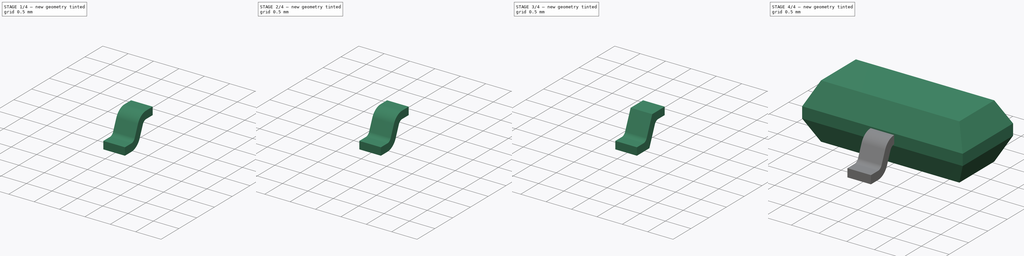
[diagram: build sequence overview — one tinted view per stage of 4, left to right]
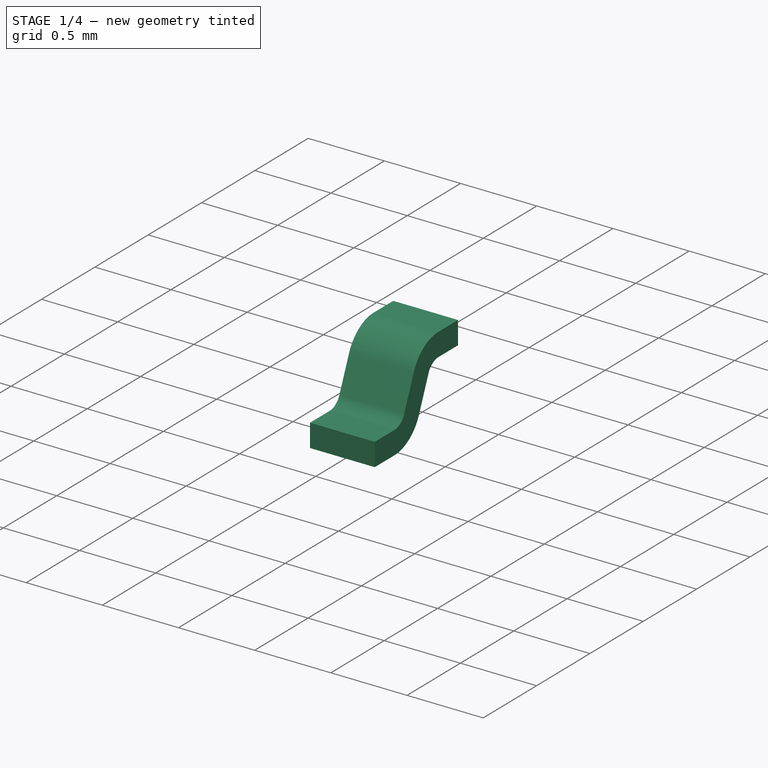
[diagram: stage 1 of 4 — iso view after this stage's code; geometry added in this stage tinted green]
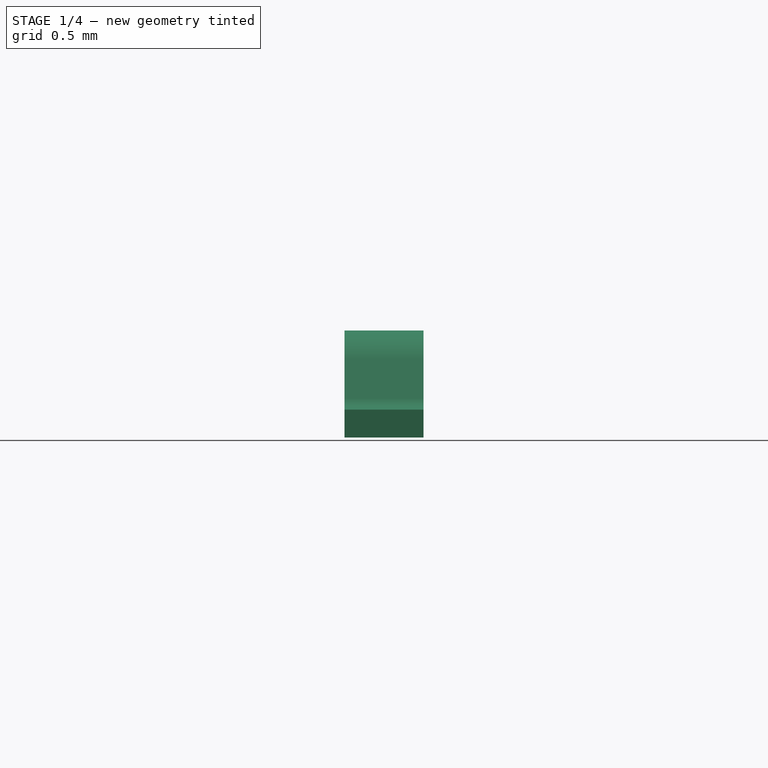
[diagram: stage 1 of 4 — front view after this stage's code; geometry added in this stage tinted green]
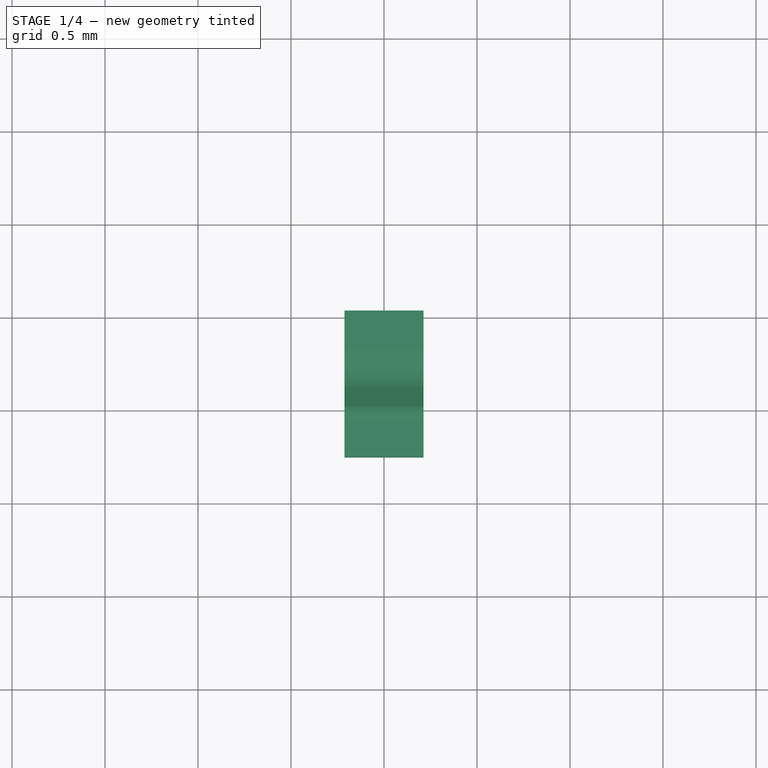
[diagram: stage 1 of 4 — top view after this stage's code; geometry added in this stage tinted green]
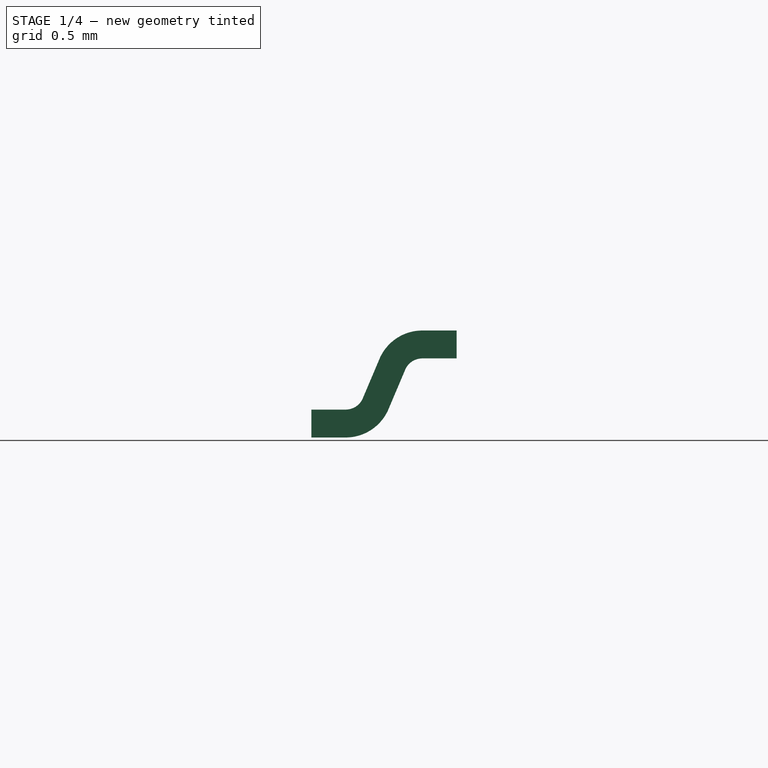
[diagram: stage 1 of 4 — right view after this stage's code; geometry added in this stage tinted green]
FCSTD DOCUMENT  (FreeCAD 0.19R24291 (Git))
Label: Surface Mount Transistor
License: All rights reserved
LicenseURL: http://en.wikipedia.org/wiki/All_rights_reserved
objects: PartDesign::Fillet×6, Sketcher::SketchObject×4, PartDesign::Pad×4, PartDesign::Body×4, PartDesign::Chamfer×1
note: 30 computed .brp shape members not serialized (recipe doc carries the construction recipe); baked Part::Feature solids carry a one-line shape summary decoded from their .brp

FEATURE [PartDesign::Body] Body002
  Group = -> [Sketch002,Pad002,Fillet002,Fillet003]
  Origin = -> Origin002
  Placement = pos=(-0.8,0,0) rot=(0,0,1;0rad)
  Tip = -> Fillet003
FEATURE [Sketcher::SketchObject] Sketch003
  FullyConstrained = true
  MapMode = 5
  Placement = pos=(0,0,0) rot=(0.57735,0.57735,0.57735;2.0944rad)
  Support = -> [YZ_Plane003]
  sketch-geometry (9):
    g0: LineSegment StartX=-0.469369 StartY=0.425 StartZ=0 EndX=-0.72 EndY=0.425 EndZ=0
    g1: LineSegment StartX=-0.72 StartY=0.425 StartZ=0 EndX=-0.9 EndY=0 EndZ=0
    g2: LineSegment StartX=-0.9 StartY=0 StartZ=0 EndX=-1.25 EndY=0 EndZ=0
    g3: LineSegment StartX=-1.25 StartY=0 StartZ=0 EndX=-1.25 EndY=0.15 EndZ=0
    g4: LineSegment StartX=-1.25 StartY=0.15 StartZ=0 EndX=-0.999369 EndY=0.15 EndZ=0
    g5: LineSegment StartX=-0.999369 StartY=0.15 StartZ=0 EndX=-0.819369 EndY=0.575 EndZ=0
    g6: LineSegment StartX=-0.819369 StartY=0.575 StartZ=0 EndX=-0.469369 EndY=0.575 EndZ=0
    g7: LineSegment StartX=-0.469369 StartY=0.575 StartZ=0 EndX=-0.469369 EndY=0.425 EndZ=0
    g8: LineSegment StartX=-0.72 StartY=0.425 StartZ=0 EndX=-0.858123 EndY=0.483499 EndZ=0
  constraints (27):
    c: Coincident(g0,g1)
    c: PointOnObject(g1,g-1)
    c: Coincident(g1,g2)
    c: PointOnObject(g2,g-1)
    c: Coincident(g2,g3)
    c: Coincident(g3,g4)
    c: Horizontal(g4)
    c: Coincident(g4,g5)
    c: Coincident(g5,g6)
    c: Horizontal(g6)
    c: Coincident(g6,g7)
    c: Coincident(g7,g0)
    c: Horizontal(g0)
    c: Parallel(g1,g5)
    c: Vertical(g3)
    c: Equal(g3,g7)
    c: Vertical(g7)
    c: Coincident(g8,g0)
    c: PointOnObject(g8,g5)
    c: Perpendicular(g5,g8)
    c: Equal(g8,g3)
    c: DistanceY(g3,g3) = 0.15
    c: DistanceX(g2,g-1) = 1.25
    c: DistanceY(g-1,g0) = 0.425
    c: DistanceX(g2,g2) = 0.35
    c: DistanceX(g1,g1) = 0.18
    c: Equal(g6,g2)
FEATURE [PartDesign::Pad] Pad003
  Direction = (1,1,1)
  Length = 0.425
  Length2 = 100
  Midplane = true
  Placement = pos=(0,0,0) rot=(0.57735,0.57735,0.57735;2.0944rad)
  Profile = -> Sketch003
  Type = 0
FEATURE [PartDesign::Fillet] Fillet004
  Base = -> Pad003 [Edge14,Edge2]
  BaseFeature = -> Pad003
  Placement = pos=(0,0,0) rot=(0.57735,0.57735,0.57735;2.0944rad)
  Radius = 0.1
  SupportTransform = false
FEATURE [PartDesign::Fillet] Fillet005
  Base = -> Fillet004 [Edge25,Edge26]
  BaseFeature = -> Fillet004
  Placement = pos=(0,0,0) rot=(0.57735,0.57735,0.57735;2.0944rad)
  Radius = 0.25
  SupportTransform = false
FEATURE [PartDesign::Body] Body003
  Group = -> [Sketch003,Pad003,Fillet004,Fillet005]
  Origin = -> Origin003
  Placement = pos=(0.8,0,0) rot=(0,0,1;0rad)
  Tip = -> Fillet005
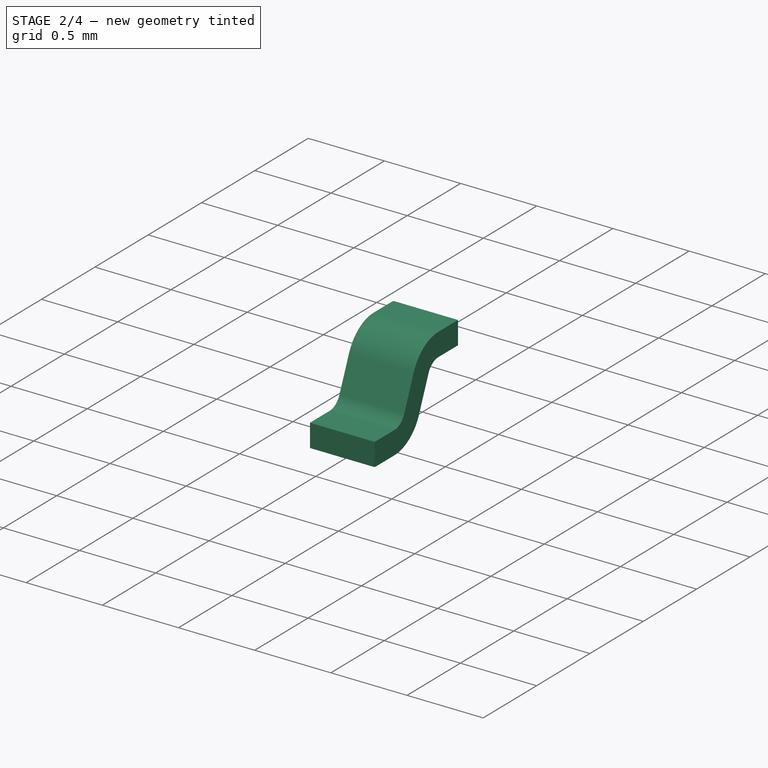
[diagram: stage 2 of 4 — iso view after this stage's code; geometry added in this stage tinted green]
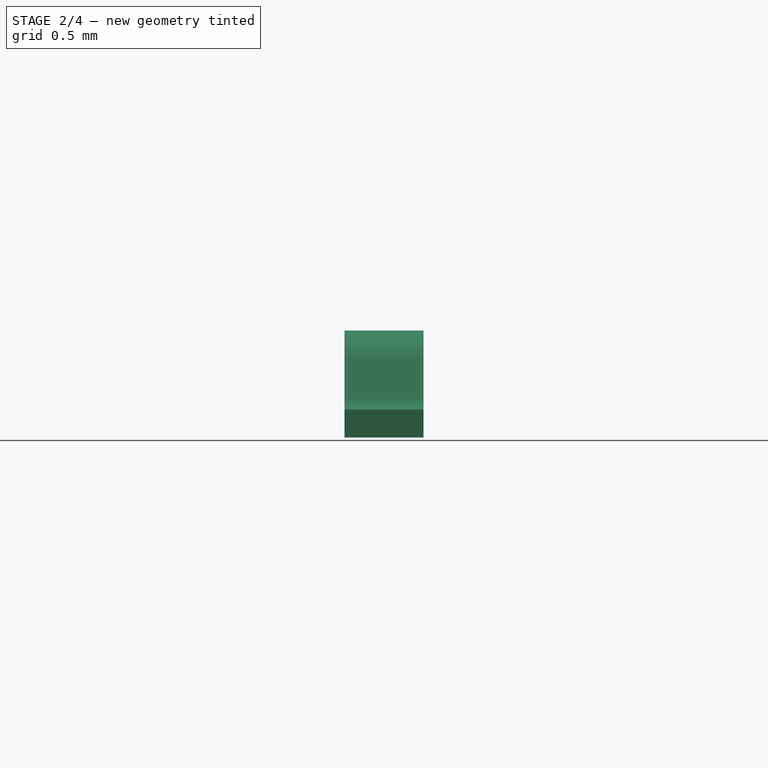
[diagram: stage 2 of 4 — front view after this stage's code; geometry added in this stage tinted green]
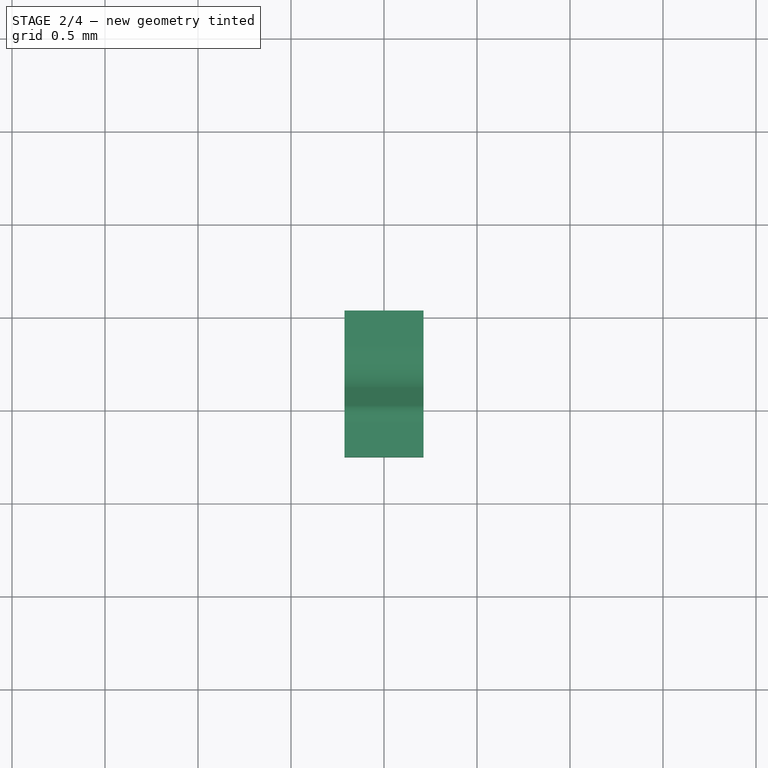
[diagram: stage 2 of 4 — top view after this stage's code; geometry added in this stage tinted green]
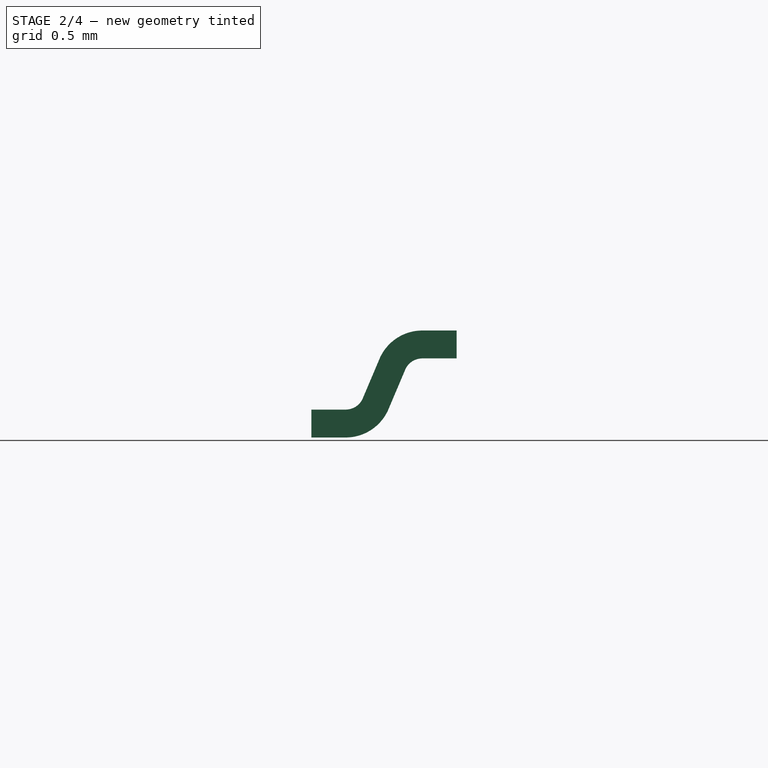
[diagram: stage 2 of 4 — right view after this stage's code; geometry added in this stage tinted green]
FEATURE [PartDesign::Body] Body001
  Group = -> [Sketch001,Pad001,Fillet,Fillet001]
  Origin = -> Origin001
  Placement = pos=(0,0,0) rot=(0,0,1;3.14159rad)
  Tip = -> Fillet001
FEATURE [Sketcher::SketchObject] Sketch002
  FullyConstrained = true
  MapMode = 5
  Placement = pos=(0,0,0) rot=(0.57735,0.57735,0.57735;2.0944rad)
  Support = -> [YZ_Plane001]
  sketch-geometry (9):
    g0: LineSegment StartX=-0.469369 StartY=0.425 StartZ=0 EndX=-0.72 EndY=0.425 EndZ=0
    g1: LineSegment StartX=-0.72 StartY=0.425 StartZ=0 EndX=-0.9 EndY=0 EndZ=0
    g2: LineSegment StartX=-0.9 StartY=0 StartZ=0 EndX=-1.25 EndY=0 EndZ=0
    g3: LineSegment StartX=-1.25 StartY=0 StartZ=0 EndX=-1.25 EndY=0.15 EndZ=0
    g4: LineSegment StartX=-1.25 StartY=0.15 StartZ=0 EndX=-0.999369 EndY=0.15 EndZ=0
    g5: LineSegment StartX=-0.999369 StartY=0.15 StartZ=0 EndX=-0.819369 EndY=0.575 EndZ=0
    g6: LineSegment StartX=-0.819369 StartY=0.575 StartZ=0 EndX=-0.469369 EndY=0.575 EndZ=0
    g7: LineSegment StartX=-0.469369 StartY=0.575 StartZ=0 EndX=-0.469369 EndY=0.425 EndZ=0
    g8: LineSegment StartX=-0.72 StartY=0.425 StartZ=0 EndX=-0.858123 EndY=0.483499 EndZ=0
  constraints (27):
    c: Coincident(g0,g1)
    c: PointOnObject(g1,g-1)
    c: Coincident(g1,g2)
    c: PointOnObject(g2,g-1)
    c: Coincident(g2,g3)
    c: Coincident(g3,g4)
    c: Horizontal(g4)
    c: Coincident(g4,g5)
    c: Coincident(g5,g6)
    c: Horizontal(g6)
    c: Coincident(g6,g7)
    c: Coincident(g7,g0)
    c: Horizontal(g0)
    c: Parallel(g1,g5)
    c: Vertical(g3)
    c: Equal(g3,g7)
    c: Vertical(g7)
    c: Coincident(g8,g0)
    c: PointOnObject(g8,g5)
    c: Perpendicular(g5,g8)
    c: Equal(g8,g3)
    c: DistanceY(g3,g3) = 0.15
    c: DistanceX(g2,g-1) = 1.25
    c: DistanceY(g-1,g0) = 0.425
    c: DistanceX(g2,g2) = 0.35
    c: DistanceX(g1,g1) = 0.18
    c: Equal(g6,g2)
FEATURE [PartDesign::Pad] Pad002
  Direction = (1,1,1)
  Length = 0.425
  Length2 = 100
  Midplane = true
  Placement = pos=(0,0,0) rot=(0.57735,0.57735,0.57735;2.0944rad)
  Profile = -> Sketch002
  Type = 0
FEATURE [PartDesign::Fillet] Fillet002
  Base = -> Pad002 [Edge14,Edge2]
  BaseFeature = -> Pad002
  Placement = pos=(0,0,0) rot=(0.57735,0.57735,0.57735;2.0944rad)
  Radius = 0.1
  SupportTransform = false
FEATURE [PartDesign::Fillet] Fillet003
  Base = -> Fillet002 [Edge25,Edge26]
  BaseFeature = -> Fillet002
  Placement = pos=(0,0,0) rot=(0.57735,0.57735,0.57735;2.0944rad)
  Radius = 0.25
  SupportTransform = false
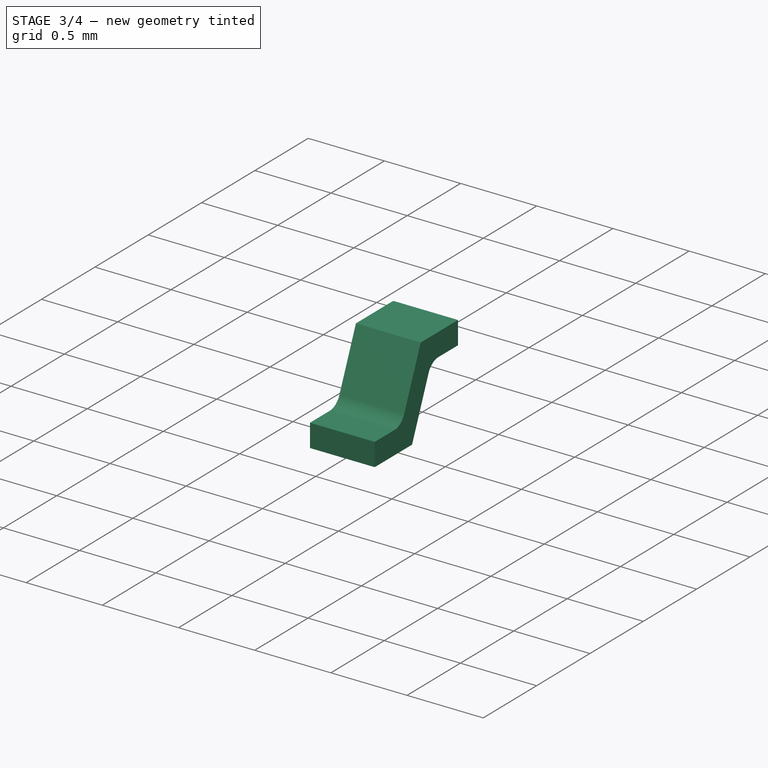
[diagram: stage 3 of 4 — iso view after this stage's code; geometry added in this stage tinted green]
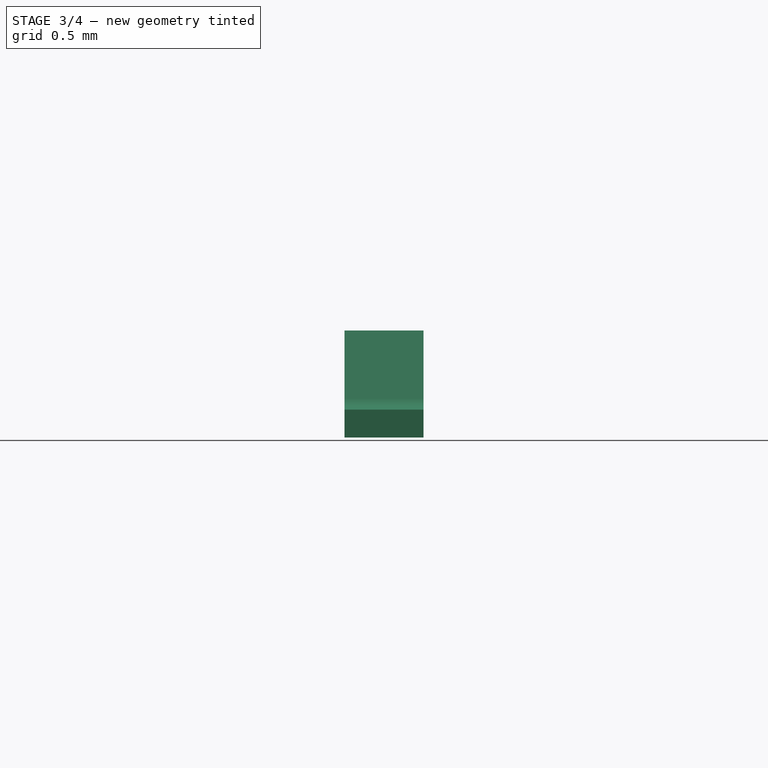
[diagram: stage 3 of 4 — front view after this stage's code; geometry added in this stage tinted green]
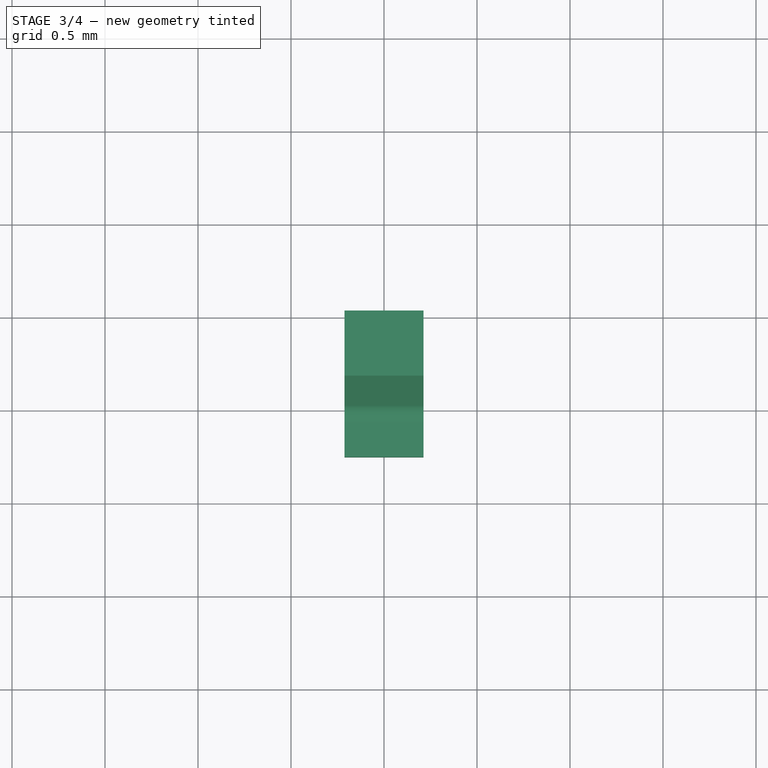
[diagram: stage 3 of 4 — top view after this stage's code; geometry added in this stage tinted green]
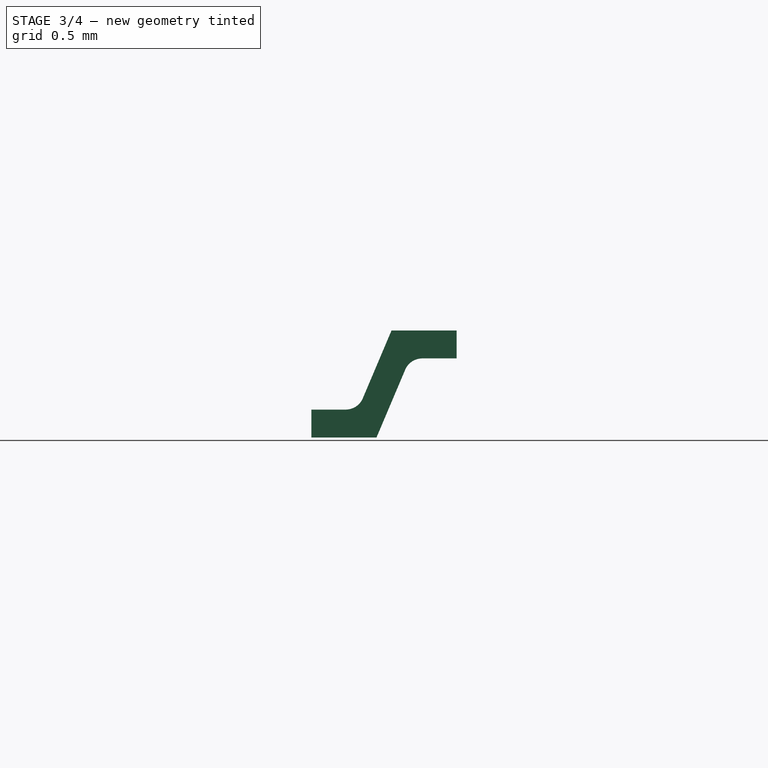
[diagram: stage 3 of 4 — right view after this stage's code; geometry added in this stage tinted green]
FEATURE [PartDesign::Body] Body
  Group = -> [Sketch,Pad,Chamfer]
  Origin = -> Origin
  Tip = -> Chamfer
FEATURE [Sketcher::SketchObject] Sketch001
  FullyConstrained = true
  MapMode = 5
  Placement = pos=(0,0,0) rot=(0.57735,0.57735,0.57735;2.0944rad)
  Support = -> [YZ_Plane001]
  sketch-geometry (9):
    g0: LineSegment StartX=-0.469369 StartY=0.425 StartZ=0 EndX=-0.72 EndY=0.425 EndZ=0
    g1: LineSegment StartX=-0.72 StartY=0.425 StartZ=0 EndX=-0.9 EndY=0 EndZ=0
    g2: LineSegment StartX=-0.9 StartY=0 StartZ=0 EndX=-1.25 EndY=0 EndZ=0
    g3: LineSegment StartX=-1.25 StartY=0 StartZ=0 EndX=-1.25 EndY=0.15 EndZ=0
    g4: LineSegment StartX=-1.25 StartY=0.15 StartZ=0 EndX=-0.999369 EndY=0.15 EndZ=0
    g5: LineSegment StartX=-0.999369 StartY=0.15 StartZ=0 EndX=-0.819369 EndY=0.575 EndZ=0
    g6: LineSegment StartX=-0.819369 StartY=0.575 StartZ=0 EndX=-0.469369 EndY=0.575 EndZ=0
    g7: LineSegment StartX=-0.469369 StartY=0.575 StartZ=0 EndX=-0.469369 EndY=0.425 EndZ=0
    g8: LineSegment StartX=-0.72 StartY=0.425 StartZ=0 EndX=-0.858123 EndY=0.483499 EndZ=0
  constraints (27):
    c: Coincident(g0,g1)
    c: PointOnObject(g1,g-1)
    c: Coincident(g1,g2)
    c: PointOnObject(g2,g-1)
    c: Coincident(g2,g3)
    c: Coincident(g3,g4)
    c: Horizontal(g4)
    c: Coincident(g4,g5)
    c: Coincident(g5,g6)
    c: Horizontal(g6)
    c: Coincident(g6,g7)
    c: Coincident(g7,g0)
    c: Horizontal(g0)
    c: Parallel(g1,g5)
    c: Vertical(g3)
    c: Equal(g3,g7)
    c: Vertical(g7)
    c: Coincident(g8,g0)
    c: PointOnObject(g8,g5)
    c: Perpendicular(g5,g8)
    c: Equal(g8,g3)
    c: DistanceY(g3,g3) = 0.15
    c: DistanceX(g2,g-1) = 1.25
    c: DistanceY(g-1,g0) = 0.425
    c: DistanceX(g2,g2) = 0.35
    c: DistanceX(g1,g1) = 0.18
    c: Equal(g6,g2)
FEATURE [PartDesign::Pad] Pad001
  Direction = (1,1,1)
  Length = 0.425
  Length2 = 100
  Midplane = true
  Placement = pos=(0,0,0) rot=(0.57735,0.57735,0.57735;2.0944rad)
  Profile = -> Sketch001
  Type = 0
FEATURE [PartDesign::Fillet] Fillet
  Base = -> Pad001 [Edge14,Edge2]
  BaseFeature = -> Pad001
  Placement = pos=(0,0,0) rot=(0.57735,0.57735,0.57735;2.0944rad)
  Radius = 0.1
  SupportTransform = false
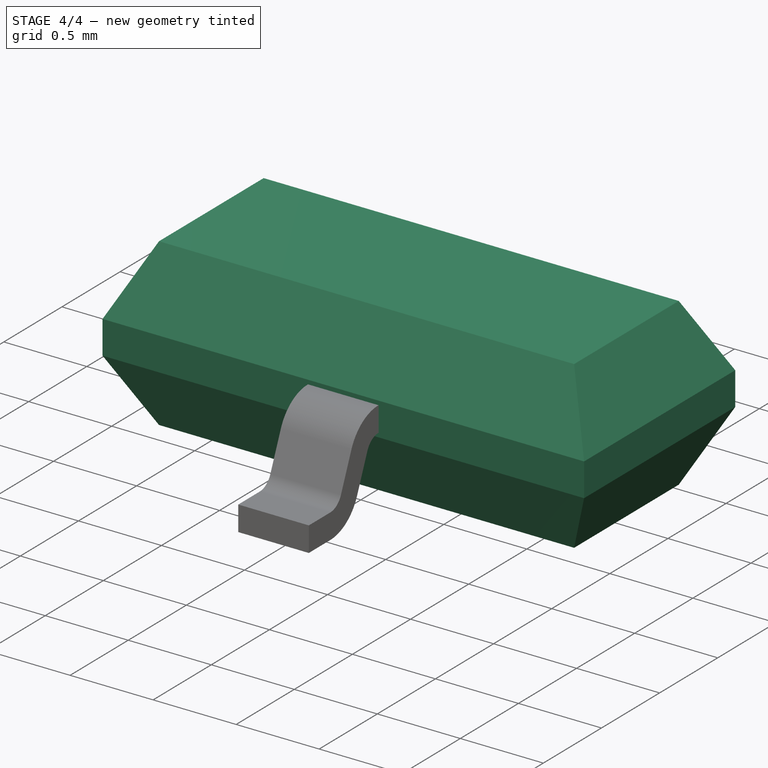
[diagram: stage 4 of 4 — iso view after this stage's code; geometry added in this stage tinted green]
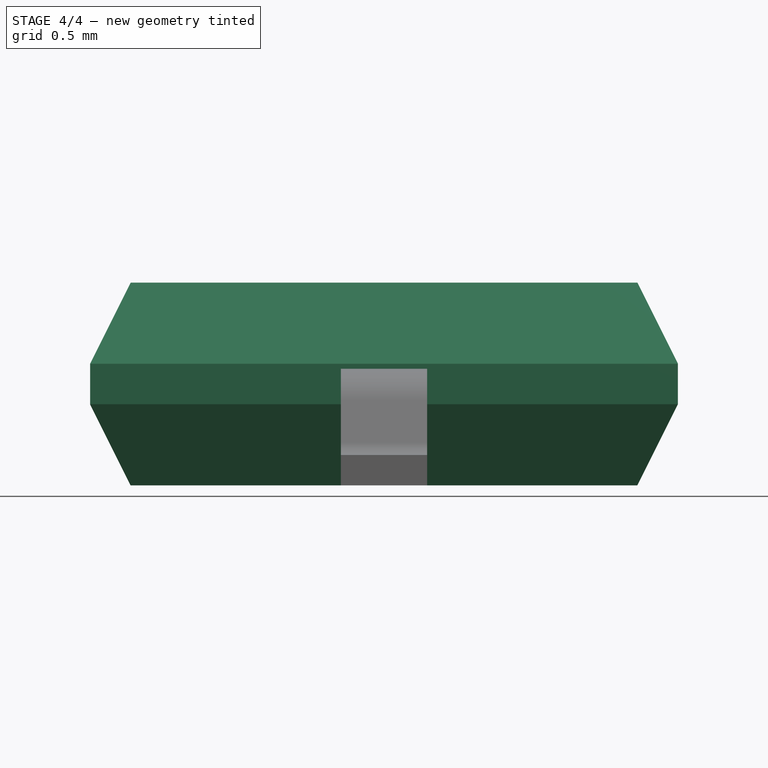
[diagram: stage 4 of 4 — front view after this stage's code; geometry added in this stage tinted green]
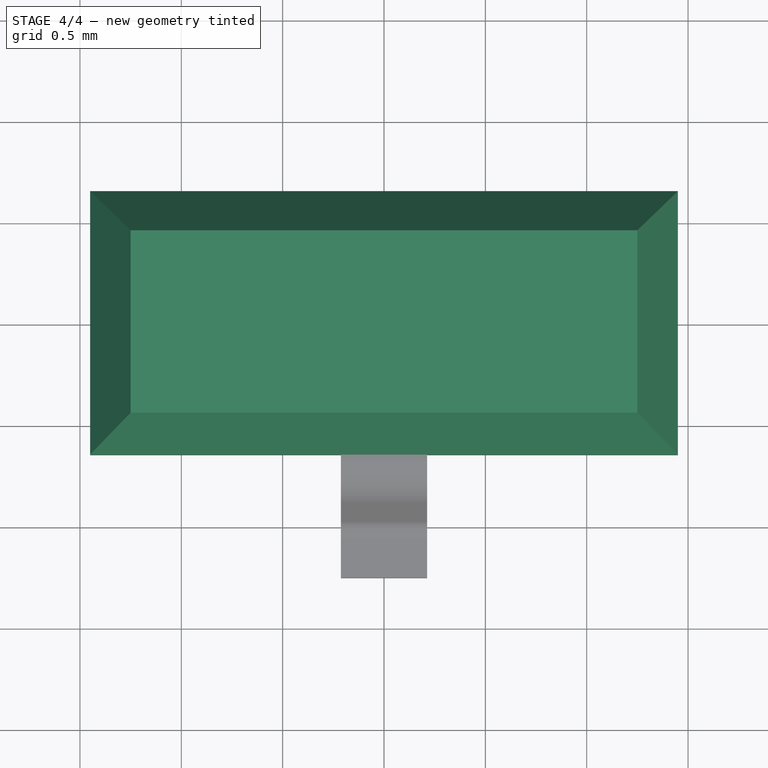
[diagram: stage 4 of 4 — top view after this stage's code; geometry added in this stage tinted green]
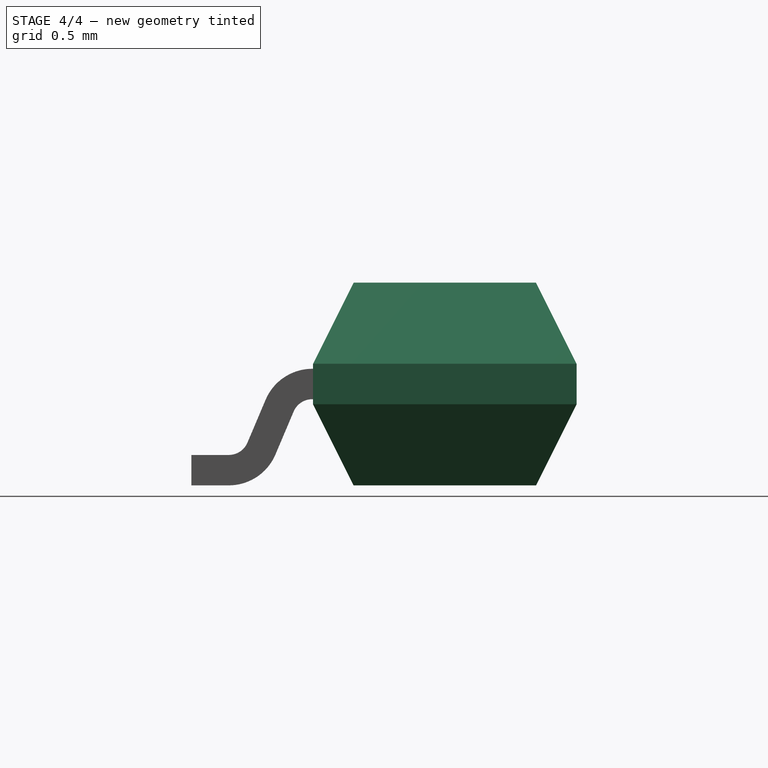
[diagram: stage 4 of 4 — right view after this stage's code; geometry added in this stage tinted green]
FEATURE [Sketcher::SketchObject] Sketch
  FullyConstrained = true
  MapMode = 5
  Support = -> [XY_Plane]
  sketch-geometry (4):
    g0: LineSegment StartX=-1.45 StartY=0.65 StartZ=0 EndX=1.45 EndY=0.65 EndZ=0
    g1: LineSegment StartX=1.45 StartY=0.65 StartZ=0 EndX=1.45 EndY=-0.65 EndZ=0
    g2: LineSegment StartX=1.45 StartY=-0.65 StartZ=0 EndX=-1.45 EndY=-0.65 EndZ=0
    g3: LineSegment StartX=-1.45 StartY=-0.65 StartZ=0 EndX=-1.45 EndY=0.65 EndZ=0
  constraints (11):
    c: Coincident(g0,g1)
    c: Coincident(g1,g2)
    c: Coincident(g2,g3)
    c: Coincident(g3,g0)
    c: Horizontal(g0)
    c: Horizontal(g2)
    c: Vertical(g1)
    c: Vertical(g3)
    c: Symmetric(g0,g1,g-1)
    c: DistanceX(g0,g0) = 2.9
    c: DistanceY(g3,g3) = 1.3
FEATURE [PartDesign::Pad] Pad
  Direction = (1,1,1)
  Length = 1
  Length2 = 100
  Profile = -> Sketch
  Type = 0
FEATURE [PartDesign::Chamfer] Chamfer
  Angle = 45
  Base = -> Pad [Face6,Face5]
  BaseFeature = -> Pad
  ChamferType = 1
  FlipDirection = false
  Size = 0.4
  Size2 = 0.2
  SupportTransform = false
FEATURE [PartDesign::Fillet] Fillet001
  Base = -> Fillet [Edge25,Edge26]
  BaseFeature = -> Fillet
  Placement = pos=(0,0,0) rot=(0.57735,0.57735,0.57735;2.0944rad)
  Radius = 0.25
  SupportTransform = false
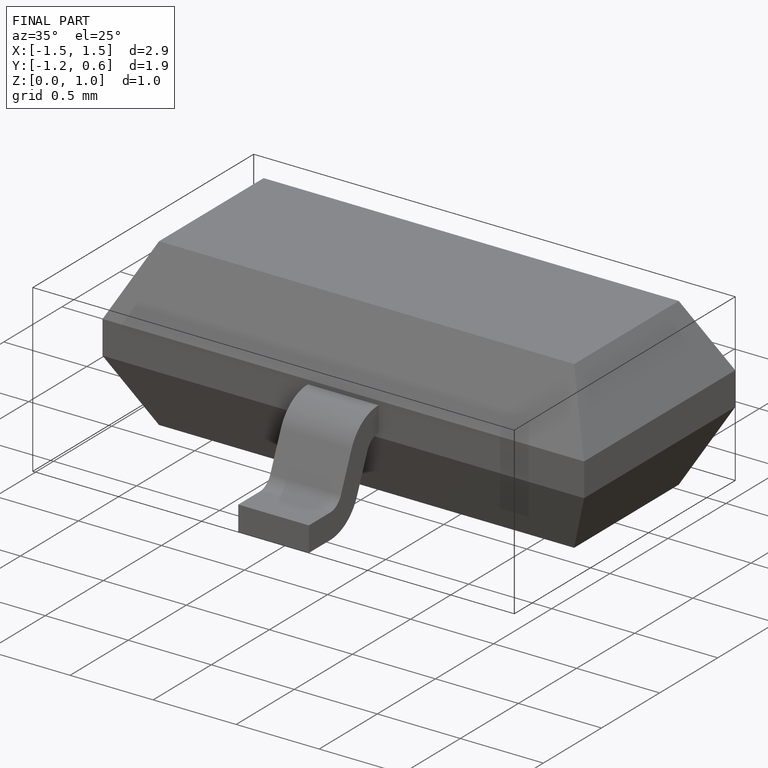
[diagram: finished part — iso view with bounding-box wireframe]
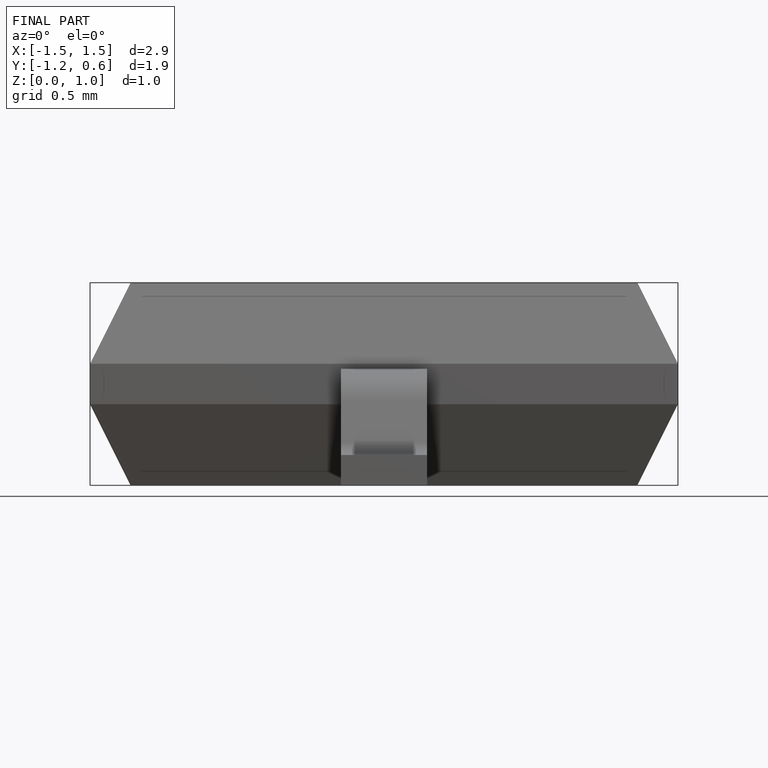
[diagram: finished part — front view with bounding-box wireframe]
